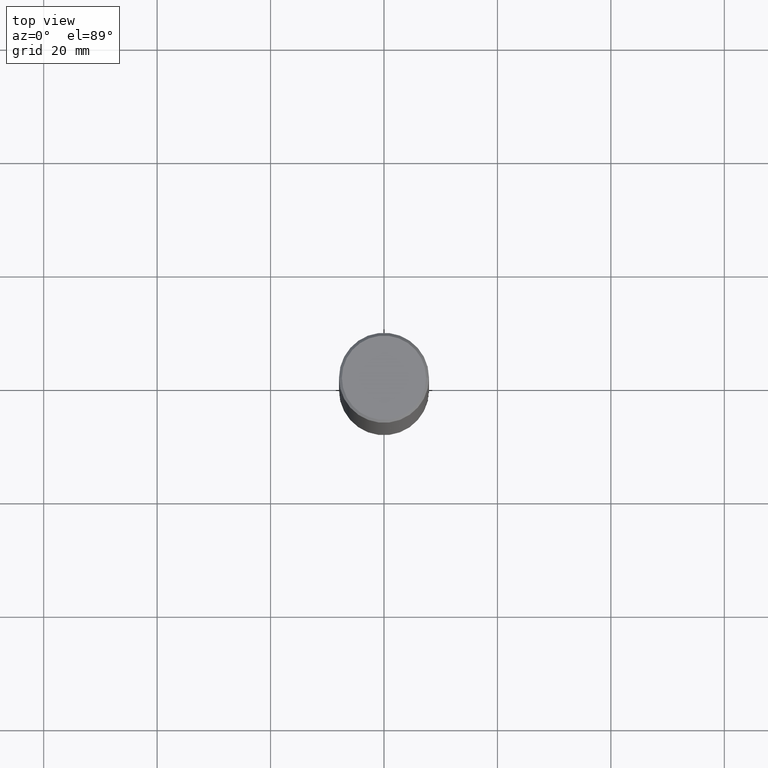
[diagram: clean part render]
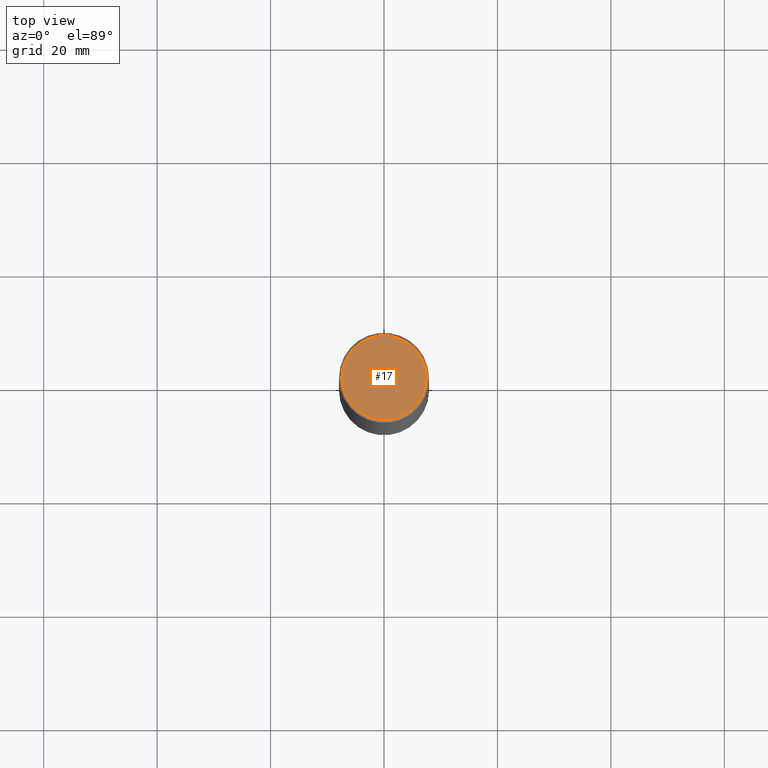
[diagram: same view with one face highlighted and labeled with its STEP entity id]
A machine part, top view. The second image highlights one B-rep face of the part: STEP entity #17.
In plain terms, the highlighted planar face has unit normal (0, -0, -1).
Its self-contained STEP definition (entity closure, byte-faithful):
#16 = VERTEX_POINT ( 'NONE', #409 ) ;
#17 = ADVANCED_FACE ( 'NONE', ( #346 ), #171, .F. ) ;
#23 = ORIENTED_EDGE ( 'NONE', *, *, #228, .T. ) ;
#31 = DIRECTION ( 'NONE',  ( 1.000000000000000000, -6.982962677686266711E-15, 4.876067333457696203E-29 ) ) ;
#86 = VERTEX_POINT ( 'NONE', #280 ) ;
#93 = ORIENTED_EDGE ( 'NONE', *, *, #114, .T. ) ;
#98 = AXIS2_PLACEMENT_3D ( 'NONE', #134, #416, #31 ) ;
#114 = EDGE_CURVE ( 'NONE', #86, #16, #190, .T. ) ;
#134 = CARTESIAN_POINT ( 'NONE',  ( -3.131554243005659264E-46, 4.471029511141341874E-32, 1.280553747030123384E-17 ) ) ;
#153 = CARTESIAN_POINT ( 'NONE',  ( -3.131554243005659264E-46, 4.471029511141341874E-32, 1.280553747030123384E-17 ) ) ;
#170 = DIRECTION ( 'NONE',  ( -2.445468806185136597E-29, 3.491481338843145583E-15, 1.000000000000000000 ) ) ;
#171 = PLANE ( 'NONE',  #250 ) ;
#173 = AXIS2_PLACEMENT_3D ( 'NONE', #153, #170, #373 ) ;
#190 = CIRCLE ( 'NONE', #98, 0.2924999999999995937 ) ;
#207 = CARTESIAN_POINT ( 'NONE',  ( 2.042516583223230173E-15, 0.2924999999999995937, -1.014855522876468194E-15 ) ) ;
#228 = EDGE_CURVE ( 'NONE', #16, #86, #320, .T. ) ;
#250 = AXIS2_PLACEMENT_3D ( 'NONE', #207, #305, #342 ) ;
#280 = CARTESIAN_POINT ( 'NONE',  ( 0.2924999999999995937, -2.110215457714317564E-15, 1.280553747031575381E-17 ) ) ;
#305 = DIRECTION ( 'NONE',  ( 2.438088387897960049E-29, -3.491481338843145188E-15, -1.000000000000000000 ) ) ;
#320 = CIRCLE ( 'NONE', #173, 0.2924999999999995937 ) ;
#338 = EDGE_LOOP ( 'NONE', ( #23, #93 ) ) ;
#342 = DIRECTION ( 'NONE',  ( -1.000000000000000000, 6.982962677686265922E-15, -4.876176775795935793E-29 ) ) ;
#346 = FACE_OUTER_BOUND ( 'NONE', #338, .T. ) ;
#373 = DIRECTION ( 'NONE',  ( 1.000000000000000000, -6.982962677686266711E-15, 4.876067333457696203E-29 ) ) ;
#409 = CARTESIAN_POINT ( 'NONE',  ( -0.2924999999999995937, 2.077431396611661822E-15, 1.280553747028682788E-17 ) ) ;
#416 = DIRECTION ( 'NONE',  ( -2.445468806185136597E-29, 3.491481338843145583E-15, 1.000000000000000000 ) ) ;